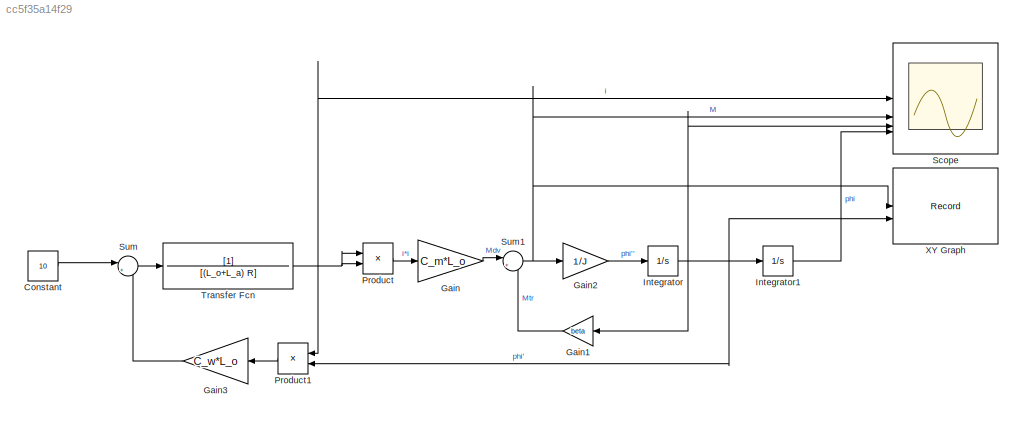
MODEL slx_cc5f35a14f29
KIND model
CONFIG AbsTol = auto
CONFIG EnableMultiTasking = off
CONFIG FixedStep = auto
CONFIG MaxStep = 0.002
CONFIG MinStep = auto
CONFIG RelTol = 1e-5
CONFIG SampleTimeConstraint = Unconstrained
CONFIG SolverName = VariableStepAuto
CONFIG StartTime = 0.0
CONFIG StopTime = 10
BLOCK [Constant] Constant
  Value = 10
BLOCK [Gain] Gain
  Gain = C_m*L_o
BLOCK [Gain] Gain1
  Gain = beta
BLOCK [Gain] Gain2
  Gain = 1/J
BLOCK [Gain] Gain3
  Gain = C_w*L_o
  NameLocation = top
BLOCK [Integrator] Integrator
BLOCK [Integrator] Integrator1
BLOCK [Product] Product
BLOCK [Product] Product1
  NameLocation = top
BLOCK [Scope] Scope
  Floating = off
  NumInputPorts = 4
  ScopeSpecificationString = Simulink.scopes.TimeScopeBlockCfg('CurrentConfiguration', extmgr.ConfigurationSet(extmgr.Configuration('Core','General UI',true,'FigureColor',[1 1 1]),extmgr.Configuration('Core','Source UI',true),extmgr.Configuration('Sources','WiredSimulink',true),extmgr.Configuration('Visuals','Time Domain',true,'SerializedDisplays',{struct('MinYLimReal','-0.14718','MaxYLimReal','1.32463','YLabelReal','','MinYL...<+3716ch>
BLOCK [Sum] Sum
  Inputs = |+-
BLOCK [Sum] Sum1
  Inputs = |+-
BLOCK [TransferFcn] Transfer Fcn
  Denominator = [(L_o+L_a) R]
BLOCK [Record] XY Graph
  CompatibilityTag = XY
  FileSettingsInternal = {"entries":[{"content":{"excelSettings":{"content":{},"type":"Streamout.ExcelSettings"}},"type":"Streamout.FileSettingStorage","uuid":""}],"packageUris":["http:\/\/schema.mathworks.com\/mf0\/streamout_blocks\/R2020a"],"version":"1.0"}
  Layout = [1 1]
  SignalsInternal = {"entries":[{"content":{"signals":[{"content":{"blockPath":[],"dimensions":[1],"domain":"","lineColor":"#0072bd","plots":[1],"port":1,"sid":[""],"signalID":233,"signalName":"M"},"type":"RecordBlkView.Signal","uuid":""},{"content":{"blockPath":[],"dimensions":[1],"domain":"","lineColor":"#d95319","plots":[1],"port":2,"sid":[""],"signalID":237,"signalName":"phi'"},"type":"RecordBlkView.Signal","uuid...<+151ch>
  VisualizationBindings = {"xyplotplugin":{"info":[{"series":[{"bindingParametersList":[{"parameter":"Y-Axis","signalID":233,"signalName":"M"},{"parameter":"X-Axis","signalID":237,"signalName":"phi'"}],"seriesID":1310},{"bindingParametersList":[{"parameter":"X-Axis","signalID":233,"signalName":"M"}],"seriesID":480}],"subplotID":1}]}}
LINE Constant:1 -> Sum:1
LINE Gain1:1 -> Sum1:2
LINE Gain2:1 -> Integrator:1
LINE Gain3:1 -> Sum:2
LINE Gain:1 -> Sum1:1
LINE Integrator1:1 -> Scope:4
NET Integrator:1 -> Gain1:1, Integrator1:1, Product1:2, Scope:3, XY Graph:2
LINE Product1:1 -> Gain3:1
LINE Product:1 -> Gain:1
NET Sum1:1 -> Gain2:1, Scope:2, XY Graph:1
LINE Sum:1 -> Transfer Fcn:1
NET Transfer Fcn:1 -> Product1:1, Product:1, Product:2, Scope:1
note: NET lines group one-source signal fan-out (src -> all destinations, sorted); 1:1 wires keep LINE
